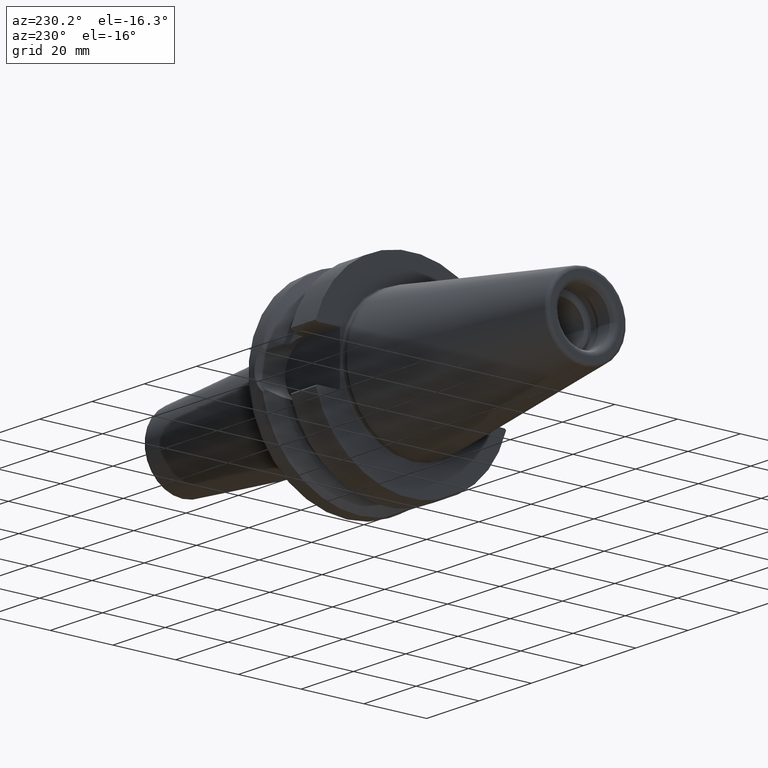
[diagram: clean part render]
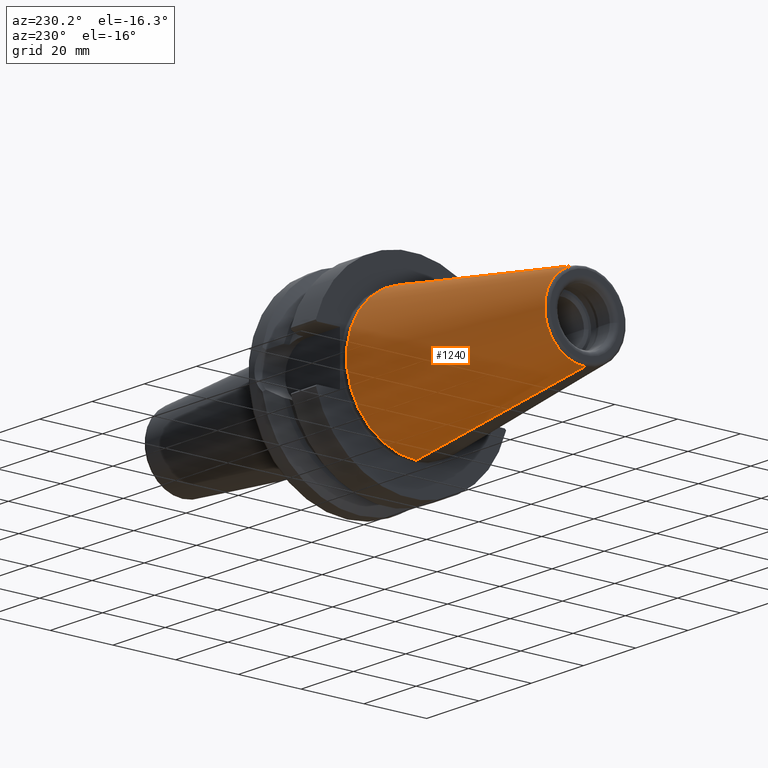
[diagram: same view with one face highlighted and labeled with its STEP entity id]
A machine part, auxiliary view. The second image highlights one B-rep face of the part: STEP entity #1240.
In plain terms, the highlighted conical surface has half-angle 8.297 deg.
Its self-contained STEP definition (entity closure, byte-faithful):
#2=CARTESIAN_POINT('',(0.E0,0.E0,0.E0));
#3=DIRECTION('',(1.E0,0.E0,0.E0));
#4=DIRECTION('',(0.E0,0.E0,-1.E0));
#5=AXIS2_PLACEMENT_3D('',#2,#3,#4);
#7=CARTESIAN_POINT('',(-6.454430688323E1,0.E0,0.E0));
#8=DIRECTION('',(-1.E0,0.E0,0.E0));
#9=DIRECTION('',(0.E0,0.E0,1.E0));
#10=AXIS2_PLACEMENT_3D('',#7,#8,#9);
#25=DIRECTION('',(-9.895329824990E-1,-2.390662347400E-10,1.443068832268E-1));
#26=VECTOR('',#25,6.522703944722E1);
#27=CARTESIAN_POINT('',(5.606857200746E-10,1.565092715213E-8,
-2.222499999985E1));
#28=LINE('',#27,#26);
#34=DIRECTION('',(-9.895329824990E-1,2.390660335631E-10,-1.443068832268E-1));
#35=VECTOR('',#34,6.522703944722E1);
#36=CARTESIAN_POINT('',(5.606857200746E-10,-1.565091853005E-8,
2.222499999985E1));
#37=LINE('',#36,#35);
#1058=CARTESIAN_POINT('',(-6.454430688323E1,0.E0,1.281228923511E1));
#1059=CARTESIAN_POINT('',(-6.454430688323E1,0.E0,-1.281228923511E1));
#1060=VERTEX_POINT('',#1058);
#1061=VERTEX_POINT('',#1059);
#1062=CARTESIAN_POINT('',(4.547473508865E-13,0.E0,2.2225E1));
#1063=CARTESIAN_POINT('',(4.547473508865E-13,0.E0,-2.2225E1));
#1064=VERTEX_POINT('',#1062);
#1065=VERTEX_POINT('',#1063);
#1225=CARTESIAN_POINT('',(-3.227215344162E1,0.E0,0.E0));
#1226=DIRECTION('',(1.E0,0.E0,0.E0));
#1227=DIRECTION('',(0.E0,0.E0,1.E0));
#1228=AXIS2_PLACEMENT_3D('',#1225,#1226,#1227);
#1229=CONICAL_SURFACE('',#1228,1.751864461755E1,8.2971444E0);
#1231=ORIENTED_EDGE('',*,*,#1230,.T.);
#1233=ORIENTED_EDGE('',*,*,#1232,.T.);
#1235=ORIENTED_EDGE('',*,*,#1234,.T.);
#1237=ORIENTED_EDGE('',*,*,#1236,.F.);
#1238=EDGE_LOOP('',(#1231,#1233,#1235,#1237));
#1239=FACE_OUTER_BOUND('',#1238,.F.);
#1240=ADVANCED_FACE('',(#1239),#1229,.T.);
#6=CIRCLE('',#5,2.2225E1);
#11=CIRCLE('',#10,1.281228923511E1);
#1230=EDGE_CURVE('',#1065,#1064,#6,.T.);
#1232=EDGE_CURVE('',#1064,#1060,#37,.T.);
#1234=EDGE_CURVE('',#1060,#1061,#11,.T.);
#1236=EDGE_CURVE('',#1065,#1061,#28,.T.);